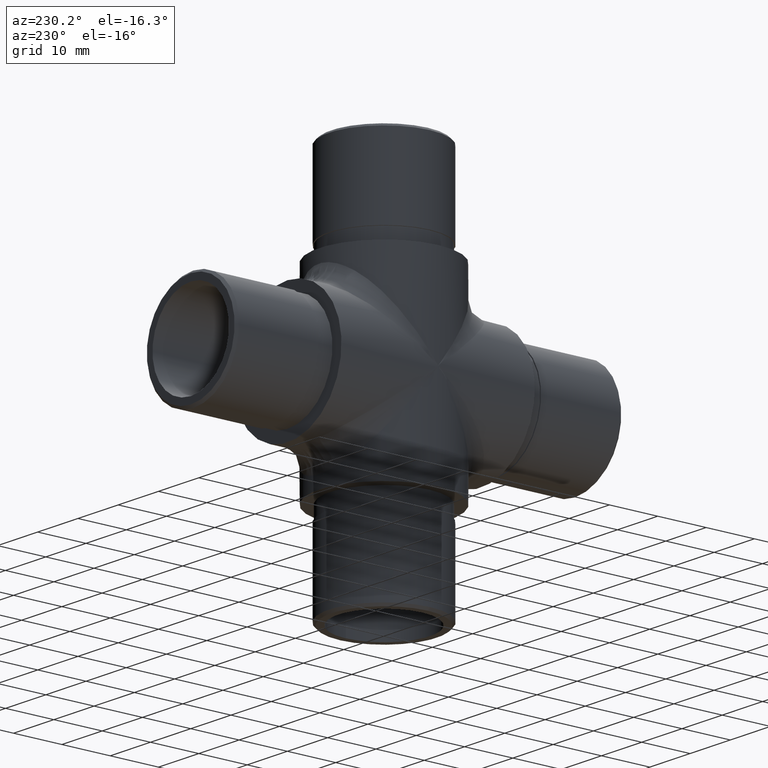
[diagram: clean part render]
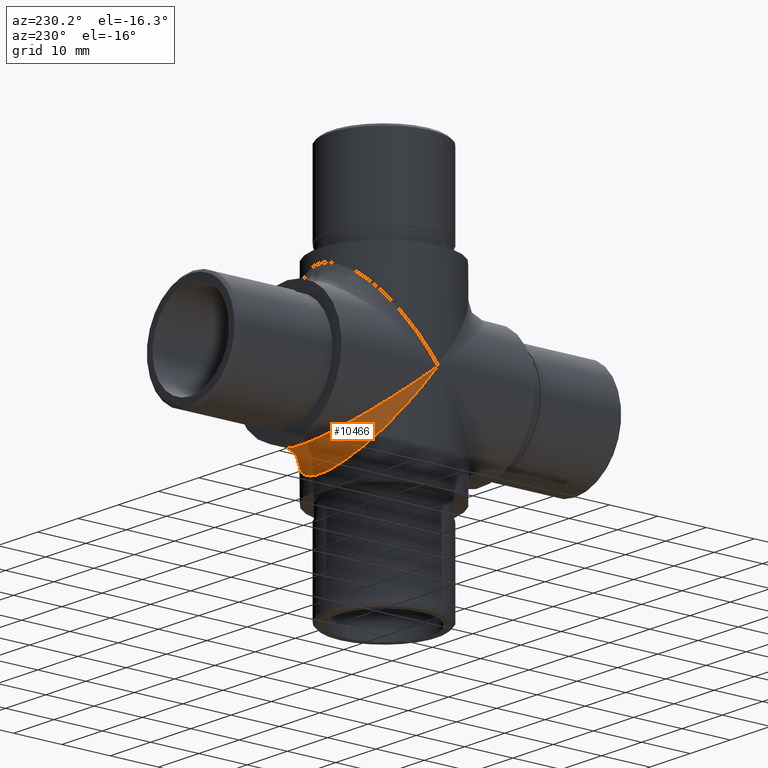
[diagram: same view with one face highlighted and labeled with its STEP entity id]
A machine part, auxiliary view. The second image highlights one B-rep face of the part: STEP entity #10466.
In plain terms, the highlighted face is a freeform B-spline surface patch.
Its self-contained STEP definition (entity closure, byte-faithful):
#89 = CARTESIAN_POINT ( 'NONE',  ( -4.733780939930282400, 12.68303839724893400, -12.68303839724893400 ) ) ;
#133 = CARTESIAN_POINT ( 'NONE',  ( -11.70026303290572400, 6.767469909088331900, -6.767469909088331900 ) ) ;
#179 = CARTESIAN_POINT ( 'NONE',  ( 8.204362700589751300, 10.69419756427675200, -13.87462806666408700 ) ) ;
#224 = CARTESIAN_POINT ( 'NONE',  ( -10.13305261838113600, 8.888119795536983500, -11.53142679792651700 ) ) ;
#394 = CARTESIAN_POINT ( 'NONE',  ( 13.01982392487303400, 4.524480820171791400, -3.487350546207317300 ) ) ;
#429 = CARTESIAN_POINT ( 'NONE',  ( 13.01982392487303400, 3.487350546207317300, -4.524480820171791400 ) ) ;
#1061 = CARTESIAN_POINT ( 'NONE',  ( -8.888119795537040300, 13.14659986548391600, -10.13305261838108600 ) ) ;
#1107 = CARTESIAN_POINT ( 'NONE',  ( -12.76305610663294100, 5.622663238731984600, -4.333800605212510400 ) ) ;
#1155 = CARTESIAN_POINT ( 'NONE',  ( 3.487350545992347500, 16.89189051968587300, -13.01982392491579600 ) ) ;
#1197 = CARTESIAN_POINT ( 'NONE',  ( 7.054827041781281100, 11.57092578937018400, -11.57092578937018400 ) ) ;
#1241 = CARTESIAN_POINT ( 'NONE',  ( -9.277602110785601000, 9.864348740863087900, -9.864348740863087900 ) ) ;
#1282 = CARTESIAN_POINT ( 'NONE',  ( 11.67233500670892900, 6.740476567566878100, -8.745079264241074000 ) ) ;
#1331 = CARTESIAN_POINT ( 'NONE',  ( 10.13305261838048200, 8.888119795537646100, -11.53142679792780000 ) ) ;
#1412 = CARTESIAN_POINT ( 'NONE',  ( 11.16885367848692700, 7.620430911806551900, -7.620430911806551900 ) ) ;
#1456 = CARTESIAN_POINT ( 'NONE',  ( 13.44999999999999800, -6.092634936281267400E-014, 4.696042400744013400E-014 ) ) ;
#1967 = CARTESIAN_POINT ( 'NONE',  ( -13.44999999999999800, 1.142112784787743900, -0.8803104272432752400 ) ) ;
#2048 = CARTESIAN_POINT ( 'NONE',  ( -4.333800605360325500, 12.76305610657172300, -16.55876052488078900 ) ) ;
#2094 = CARTESIAN_POINT ( 'NONE',  ( -4.333800605360325500, 16.55876052488078900, -12.76305610657172300 ) ) ;
#2132 = CARTESIAN_POINT ( 'NONE',  ( 4.333800605359538600, 16.55876052488292800, -12.76305610657204200 ) ) ;
#2173 = CARTESIAN_POINT ( 'NONE',  ( -8.888119795537040300, 10.13305261838108600, -13.14659986548391600 ) ) ;
#2221 = CARTESIAN_POINT ( 'NONE',  ( -7.054827041781781100, 11.57092578937020900, -11.57092578937020900 ) ) ;
#2303 = CARTESIAN_POINT ( 'NONE',  ( 12.76305610663356500, 4.333800605211018300, -5.622663238732032600 ) ) ;
#2348 = CARTESIAN_POINT ( 'NONE',  ( 13.44999999999999800, -4.696042400744013400E-014, 6.092634936281267400E-014 ) ) ;
#2396 = CARTESIAN_POINT ( 'NONE',  ( 13.44999999999859400, 1.011202245689939900, -1.011202245689939900 ) ) ;
#2431 = CARTESIAN_POINT ( 'NONE',  ( 13.44999999999999900, 1.142112784788055700, -0.8803104272435157100 ) ) ;
#2459 = CARTESIAN_POINT ( 'NONE',  ( 13.45000000000000100, 0.0000000000000000000, 0.0000000000000000000 ) ) ;
#2701 = CARTESIAN_POINT ( 'NONE',  ( -13.45000000000000100, 0.0000000000000000000, 0.0000000000000000000 ) ) ;
#3053 = CARTESIAN_POINT ( 'NONE',  ( -13.01982392487316400, 4.524480820171756800, -3.487350546206692000 ) ) ;
#3095 = CARTESIAN_POINT ( 'NONE',  ( 1.760579116241483900, 17.33751576638686500, -13.36330011793109700 ) ) ;
#3142 = CARTESIAN_POINT ( 'NONE',  ( 4.733780939930250400, 12.68303839724686300, -12.68303839724686300 ) ) ;
#3186 = CARTESIAN_POINT ( 'NONE',  ( -6.740476567636771500, 11.67233500666222500, -15.14366140269359400 ) ) ;
#3231 = CARTESIAN_POINT ( 'NONE',  ( -7.826289490383428100, 11.06871699549642000, -11.06871699549642000 ) ) ;
#3327 = CARTESIAN_POINT ( 'NONE',  ( 13.36330011797385000, 1.760579116026561600, -2.284171418191122800 ) ) ;
#3374 = CARTESIAN_POINT ( 'NONE',  ( 11.70026303290028300, 6.767469909088291000, -6.767469909088291000 ) ) ;
#4064 = CARTESIAN_POINT ( 'NONE',  ( 0.6185010550578207100, 13.44999999999999800, -13.44999999999999800 ) ) ;
#4085 =( BOUNDED_SURFACE ( )  B_SPLINE_SURFACE ( 3, 2, ( 
 ( #11943, #9815, #6876 ),
 ( #10875, #4888, #1967 ),
 ( #5880, #8942, #6188 ),
 ( #10205, #5104, #3053 ),
 ( #6229, #10161, #1107 ),
 ( #10113, #133, #8081 ),
 ( #12265, #8036, #12080 ),
 ( #9205, #7190, #11144 ),
 ( #224, #1241, #8206 ),
 ( #2173, #3231, #1061 ),
 ( #6064, #2221, #10073 ),
 ( #3186, #7059, #4242 ),
 ( #9168, #89, #11225 ),
 ( #2048, #4192, #2094 ),
 ( #11102, #9029, #11182 ),
 ( #7008, #11055, #5232 ),
 ( #5189, #7099, #12130 ),
 ( #10024, #4064, #9080 ),
 ( #7146, #5065, #3095 ),
 ( #4105, #6105, #1155 ),
 ( #4148, #8120, #2132 ),
 ( #9126, #3142, #5148 ),
 ( #12219, #12170, #6149 ),
 ( #179, #1197, #8163 ),
 ( #10430, #9297, #5271 ),
 ( #1331, #9334, #8377 ),
 ( #9255, #5397, #8252 ),
 ( #1282, #1412, #10290 ),
 ( #12481, #3374, #6314 ),
 ( #2303, #8293, #12310 ),
 ( #429, #12436, #394 ),
 ( #3327, #6395, #7413 ),
 ( #4327, #2396, #2431 ),
 ( #2348, #9369, #1456 ) ),
 .UNSPECIFIED., .F., .F., .F. ) 
 B_SPLINE_SURFACE_WITH_KNOTS ( ( 4, 2, 2, 2, 2, 2, 2, 2, 2, 2, 2, 2, 2, 2, 2, 2, 4 ),
 ( 3, 3 ),
 ( 4.712388980384689700, 4.908738521234052000, 5.105088062083414300, 5.301437602932775700, 5.497787143782138000, 5.694136684631500200, 5.890486225480861600, 6.086835766330223900, 6.283185307179586200, 6.479534848028948500, 6.675884388878310800, 6.872233929727672200, 7.068583470577034500, 7.264933011426396800, 7.461282552275758200, 7.657632093125120500, 7.853981633974482800 ),
 ( 0.0000000000000000000, 1.000000000000000000 ),
 .UNSPECIFIED. ) 
 GEOMETRIC_REPRESENTATION_ITEM ( )  RATIONAL_B_SPLINE_SURFACE ( (
 ( 1.000000000000000000, 1.000000000000000000, 1.000000000000000000),
 ( 1.000000000000000000, 1.000009746410177400, 1.000000000000000000),
 ( 1.000000000000000000, 0.9967613244614439400, 1.000000000000000000),
 ( 1.000000000000000000, 0.9841171504862968900, 1.000000000000000000),
 ( 1.000000000000000000, 0.9747108043652988900, 1.000000000000000000),
 ( 1.000000000000000000, 0.9506740353970145600, 1.000000000000000000),
 ( 1.000000000000000000, 0.9360421842735772200, 1.000000000000000000),
 ( 1.000000000000000000, 0.9031650994128187500, 1.000000000000000000),
 ( 1.000000000000000000, 0.8849191471367119400, 1.000000000000000000),
 ( 1.000000000000000000, 0.8471316604321670300, 1.000000000000000000),
 ( 1.000000000000000000, 0.8275942695996153500, 1.000000000000000000),
 ( 1.000000000000000000, 0.7902180086437263800, 1.000000000000000000),
 ( 1.000000000000000000, 0.7723968218215461200, 1.000000000000000000),
 ( 1.000000000000000000, 0.7418334178756587100, 1.000000000000000000),
 ( 1.000000000000000000, 0.7291288940217078900, 1.000000000000000000),
 ( 1.000000000000000000, 0.7117460025216090200, 1.000000000000000000),
 ( 1.000000000000000000, 0.7071067811865475700, 1.000000000000000000),
 ( 1.000000000000000000, 0.7071067811865475700, 1.000000000000000000),
 ( 1.000000000000000000, 0.7117460025216734200, 1.000000000000000000),
 ( 1.000000000000000000, 0.7291288940216430500, 1.000000000000000000),
 ( 1.000000000000000000, 0.7418334178756580400, 1.000000000000000000),
 ( 1.000000000000000000, 0.7723968218215454500, 1.000000000000000000),
 ( 1.000000000000000000, 0.7902180086437986500, 1.000000000000000000),
 ( 1.000000000000000000, 0.8275942695995425200, 1.000000000000000000),
 ( 1.000000000000000000, 0.8471316604321654800, 1.000000000000000000),
 ( 1.000000000000000000, 0.8849191471367103800, 1.000000000000000000),
 ( 1.000000000000000000, 0.9031650994128184200, 1.000000000000000000),
 ( 1.000000000000000000, 0.9360421842735768800, 1.000000000000000000),
 ( 1.000000000000000000, 0.9506740353971003800, 1.000000000000000000),
 ( 1.000000000000000000, 0.9747108043652120700, 1.000000000000000000),
 ( 1.000000000000000000, 0.9841171504863854800, 1.000000000000000000),
 ( 1.000000000000000000, 0.9967613244613549000, 1.000000000000000000),
 ( 1.000000000000000000, 1.000009746410244000, 1.000000000000000000),
 ( 1.000000000000000000, 1.000000000000000000, 1.000000000000000000) ) ) 
 REPRESENTATION_ITEM ( '' )  SURFACE ( )  );
#4105 = CARTESIAN_POINT ( 'NONE',  ( 3.487350545992347900, 13.01982392491579600, -16.89189051968587300 ) ) ;
#4148 = CARTESIAN_POINT ( 'NONE',  ( 4.333800605359538600, 12.76305610657204200, -16.55876052488292800 ) ) ;
#4192 = CARTESIAN_POINT ( 'NONE',  ( -3.251151502455415600, 13.12231531940849300, -13.12231531940849300 ) ) ;
#4242 = CARTESIAN_POINT ( 'NONE',  ( -6.740476567636771500, 15.14366140269359400, -11.67233500666222500 ) ) ;
#4284 = FACE_OUTER_BOUND ( 'NONE', #7901, .T. ) ;
#4327 = CARTESIAN_POINT ( 'NONE',  ( 13.44999999999999900, 0.8803104272435157100, -1.142112784788055700 ) ) ;
#4582 = ORIENTED_EDGE ( 'NONE', *, *, #9344, .F. ) ;
#4888 = CARTESIAN_POINT ( 'NONE',  ( -13.44999999999859600, 1.011202245689661700, -1.011202245689661700 ) ) ;
#4970 = CARTESIAN_POINT ( 'NONE',  ( 13.45000000000000100, 0.0000000000000000000, 0.0000000000000000000 ) ) ;
#5065 = CARTESIAN_POINT ( 'NONE',  ( 1.231024211893906800, 13.41883242087678400, -13.41883242087678400 ) ) ;
#5104 = CARTESIAN_POINT ( 'NONE',  ( -12.89222839910951600, 3.997100754241798000, -3.997100754241798000 ) ) ;
#5148 = CARTESIAN_POINT ( 'NONE',  ( 5.960383725261334800, 15.68463515976099600, -12.08930331798157800 ) ) ;
#5189 = CARTESIAN_POINT ( 'NONE',  ( -0.8803004409946737500, 13.44999999999999900, -17.44999999999999600 ) ) ;
#5232 = CARTESIAN_POINT ( 'NONE',  ( -1.760579116241653800, 17.33751576638484000, -13.36330011793106500 ) ) ;
#5271 = CARTESIAN_POINT ( 'NONE',  ( 8.888119795537591000, 13.14659986548277200, -10.13305261838053000 ) ) ;
#5397 = CARTESIAN_POINT ( 'NONE',  ( 9.962209205122006100, 9.168816684698720500, -9.168816684698720500 ) ) ;
#5880 = CARTESIAN_POINT ( 'NONE',  ( -13.36330011797373600, 1.760579116027134200, -2.284171418191088200 ) ) ;
#6064 = CARTESIAN_POINT ( 'NONE',  ( -8.204362700590547100, 10.69419756427621900, -13.87462806666520800 ) ) ;
#6105 = CARTESIAN_POINT ( 'NONE',  ( 2.554661403383208500, 13.25396271894116200, -13.25396271894116200 ) ) ;
#6149 = CARTESIAN_POINT ( 'NONE',  ( 6.740476567637540700, 15.14366140269473800, -11.67233500666171000 ) ) ;
#6188 = CARTESIAN_POINT ( 'NONE',  ( -13.36330011797373600, 2.284171418191088200, -1.760579116027134000 ) ) ;
#6229 = CARTESIAN_POINT ( 'NONE',  ( -12.76305610663294100, 4.333800605212510400, -5.622663238731984600 ) ) ;
#6314 = CARTESIAN_POINT ( 'NONE',  ( 12.08930331792002900, 7.732988550809637700, -5.960383725409923400 ) ) ;
#6395 = CARTESIAN_POINT ( 'NONE',  ( 13.33585166001859300, 2.028616801333707400, -2.028616801333707400 ) ) ;
#6572 = CARTESIAN_POINT ( 'NONE',  ( 13.45000000000000100, 0.0000000000000000000, 0.0000000000000000000 ) ) ;
#6619 = CARTESIAN_POINT ( 'NONE',  ( -13.44999999999999400, 34.89999999999998400, -26.89999999999999900 ) ) ;
#6836 = VERTEX_POINT ( 'NONE', #2459 ) ;
#6876 = CARTESIAN_POINT ( 'NONE',  ( -13.44999999999999800, -3.205512996768196000E-015, 2.470724917279784300E-015 ) ) ;
#7008 = CARTESIAN_POINT ( 'NONE',  ( -1.760579116241653800, 13.36330011793106500, -17.33751576638484000 ) ) ;
#7059 = CARTESIAN_POINT ( 'NONE',  ( -5.506249729539848500, 12.38324776086609100, -12.38324776086609100 ) ) ;
#7099 = CARTESIAN_POINT ( 'NONE',  ( -0.6185010550577871900, 13.44999999999999800, -13.44999999999999800 ) ) ;
#7146 = CARTESIAN_POINT ( 'NONE',  ( 1.760579116241483700, 13.36330011793109700, -17.33751576638686500 ) ) ;
#7190 = CARTESIAN_POINT ( 'NONE',  ( -9.962209205127258800, 9.168816684697395300, -9.168816684697395300 ) ) ;
#7330 = CARTESIAN_POINT ( 'NONE',  ( -13.45000000000000100, 0.0000000000000000000, 0.0000000000000000000 ) ) ;
#7413 = CARTESIAN_POINT ( 'NONE',  ( 13.36330011797385000, 2.284171418191122800, -1.760579116026561600 ) ) ;
#7685 = CARTESIAN_POINT ( 'NONE',  ( 13.44999999999999900, 34.89999999999998400, -26.89999999999999900 ) ) ;
#7901 = EDGE_LOOP ( 'NONE', ( #10996, #4582 ) ) ;
#8036 = CARTESIAN_POINT ( 'NONE',  ( -11.16885367848187400, 7.620430911807802400, -7.620430911807802400 ) ) ;
#8081 = CARTESIAN_POINT ( 'NONE',  ( -12.08930331792067900, 7.732988550809592400, -5.960383725408359400 ) ) ;
#8120 = CARTESIAN_POINT ( 'NONE',  ( 3.251151502455383600, 13.12231531941066700, -13.12231531941066700 ) ) ;
#8163 = CARTESIAN_POINT ( 'NONE',  ( 8.204362700589751300, 13.87462806666408700, -10.69419756427675200 ) ) ;
#8206 = CARTESIAN_POINT ( 'NONE',  ( -10.13305261838113600, 11.53142679792651700, -8.888119795536983500 ) ) ;
#8252 = CARTESIAN_POINT ( 'NONE',  ( 10.69419756422952300, 10.64432186814306600, -8.204362700660439600 ) ) ;
#8293 = CARTESIAN_POINT ( 'NONE',  ( 12.55744004400012200, 4.959083210621027000, -4.959083210621027000 ) ) ;
#8377 = CARTESIAN_POINT ( 'NONE',  ( 10.13305261838048200, 11.53142679792780000, -8.888119795537646100 ) ) ;
#8897 = CARTESIAN_POINT ( 'NONE',  ( -13.45000000000000100, 0.0000000000000000000, 0.0000000000000000000 ) ) ;
#8942 = CARTESIAN_POINT ( 'NONE',  ( -13.33585166001308100, 2.028616801334109700, -2.028616801334109700 ) ) ;
#9029 = CARTESIAN_POINT ( 'NONE',  ( -2.554661403383419800, 13.25396271894116600, -13.25396271894116600 ) ) ;
#9080 = CARTESIAN_POINT ( 'NONE',  ( 0.8803004409947213800, 17.44999999999999600, -13.44999999999999600 ) ) ;
#9126 = CARTESIAN_POINT ( 'NONE',  ( 5.960383725261334800, 12.08930331798157800, -15.68463515976099600 ) ) ;
#9168 = CARTESIAN_POINT ( 'NONE',  ( -5.960383725260620700, 12.08930331798187500, -15.68463515976309700 ) ) ;
#9205 = CARTESIAN_POINT ( 'NONE',  ( -10.69419756423062200, 8.204362700658789400, -10.64432186814175900 ) ) ;
#9255 = CARTESIAN_POINT ( 'NONE',  ( 10.69419756422952300, 8.204362700660439600, -10.64432186814306600 ) ) ;
#9297 = CARTESIAN_POINT ( 'NONE',  ( 7.826289490383367700, 11.06871699549523500, -11.06871699549647300 ) ) ;
#9334 = CARTESIAN_POINT ( 'NONE',  ( 9.277602110785540600, 9.864348740864331300, -9.864348740863143000 ) ) ;
#9344 = EDGE_CURVE ( 'NONE', #6836, #12795, #9903, .T. ) ;
#9369 = CARTESIAN_POINT ( 'NONE',  ( 13.44999999999999800, -5.394338668512640100E-014, 5.394338668512640100E-014 ) ) ;
#9815 = CARTESIAN_POINT ( 'NONE',  ( -13.44999999999999800, -2.838118957023990100E-015, 2.838118957023990100E-015 ) ) ;
#9895 = CARTESIAN_POINT ( 'NONE',  ( 13.44999999999999400, 26.89999999999999900, -34.89999999999998400 ) ) ;
#9903 =( BOUNDED_CURVE ( )  B_SPLINE_CURVE ( 3, ( #6572, #7685, #6619, #2701 ),
 .UNSPECIFIED., .F., .F. ) 
 B_SPLINE_CURVE_WITH_KNOTS ( ( 4, 4 ),
 ( 4.712388980384689700, 7.853981633974482800 ),
 .UNSPECIFIED. ) 
 CURVE ( )  GEOMETRIC_REPRESENTATION_ITEM ( )  RATIONAL_B_SPLINE_CURVE ( ( 1.000000000000000000, 0.3333333333333333700, 0.3333333333333333700, 1.000000000000000000 ) ) 
 REPRESENTATION_ITEM ( '' )  );
#10024 = CARTESIAN_POINT ( 'NONE',  ( 0.8803004409947213800, 13.44999999999999600, -17.44999999999999600 ) ) ;
#10073 = CARTESIAN_POINT ( 'NONE',  ( -8.204362700590547100, 13.87462806666520800, -10.69419756427621900 ) ) ;
#10113 = CARTESIAN_POINT ( 'NONE',  ( -12.08930331792067900, 5.960383725408359400, -7.732988550809592400 ) ) ;
#10161 = CARTESIAN_POINT ( 'NONE',  ( -12.55744004399477400, 4.959083210621065200, -4.959083210621065200 ) ) ;
#10205 = CARTESIAN_POINT ( 'NONE',  ( -13.01982392487316400, 3.487350546206692000, -4.524480820171756800 ) ) ;
#10290 = CARTESIAN_POINT ( 'NONE',  ( 11.67233500670892900, 8.745079264241074000, -6.740476567566878100 ) ) ;
#10430 = CARTESIAN_POINT ( 'NONE',  ( 8.888119795537591000, 10.13305261838053000, -13.14659986548277200 ) ) ;
#10466 = ADVANCED_FACE ( 'NONE', ( #4284 ), #4085, .F. ) ;
#10723 =( BOUNDED_CURVE ( )  B_SPLINE_CURVE ( 3, ( #8897, #11942, #9895, #4970 ),
 .UNSPECIFIED., .F., .F. ) 
 B_SPLINE_CURVE_WITH_KNOTS ( ( 4, 4 ),
 ( 4.712388980384689700, 7.853981633974482800 ),
 .UNSPECIFIED. ) 
 CURVE ( )  GEOMETRIC_REPRESENTATION_ITEM ( )  RATIONAL_B_SPLINE_CURVE ( ( 1.000000000000000000, 0.3333333333333333700, 0.3333333333333333700, 1.000000000000000000 ) ) 
 REPRESENTATION_ITEM ( '' )  );
#10875 = CARTESIAN_POINT ( 'NONE',  ( -13.44999999999999800, 0.8803104272432752400, -1.142112784787743900 ) ) ;
#10996 = ORIENTED_EDGE ( 'NONE', *, *, #11841, .F. ) ;
#11055 = CARTESIAN_POINT ( 'NONE',  ( -1.231024211893610600, 13.41883242087678800, -13.41883242087678800 ) ) ;
#11102 = CARTESIAN_POINT ( 'NONE',  ( -3.487350545992230300, 13.01982392491581900, -16.89189051968788700 ) ) ;
#11144 = CARTESIAN_POINT ( 'NONE',  ( -10.69419756423062200, 10.64432186814175900, -8.204362700658789400 ) ) ;
#11182 = CARTESIAN_POINT ( 'NONE',  ( -3.487350545992230300, 16.89189051968788700, -13.01982392491581900 ) ) ;
#11225 = CARTESIAN_POINT ( 'NONE',  ( -5.960383725260620700, 15.68463515976309700, -12.08930331798187500 ) ) ;
#11841 = EDGE_CURVE ( 'NONE', #12795, #6836, #10723, .T. ) ;
#11942 = CARTESIAN_POINT ( 'NONE',  ( -13.44999999999999900, 26.89999999999999900, -34.89999999999998400 ) ) ;
#11943 = CARTESIAN_POINT ( 'NONE',  ( -13.44999999999999800, -2.470724917279784300E-015, 3.205512996768196000E-015 ) ) ;
#12080 = CARTESIAN_POINT ( 'NONE',  ( -11.67233500670784200, 8.745079264242345800, -6.740476567568499000 ) ) ;
#12130 = CARTESIAN_POINT ( 'NONE',  ( -0.8803004409946737500, 17.44999999999999600, -13.44999999999999900 ) ) ;
#12170 = CARTESIAN_POINT ( 'NONE',  ( 5.506249729540488000, 12.38324776086605900, -12.38324776086605900 ) ) ;
#12219 = CARTESIAN_POINT ( 'NONE',  ( 6.740476567637540700, 11.67233500666171000, -15.14366140269473800 ) ) ;
#12265 = CARTESIAN_POINT ( 'NONE',  ( -11.67233500670784200, 6.740476567568499000, -8.745079264242345800 ) ) ;
#12310 = CARTESIAN_POINT ( 'NONE',  ( 12.76305610663356500, 5.622663238732032600, -4.333800605211018300 ) ) ;
#12436 = CARTESIAN_POINT ( 'NONE',  ( 12.89222839910393100, 3.997100754242087100, -3.997100754242087100 ) ) ;
#12481 = CARTESIAN_POINT ( 'NONE',  ( 12.08930331792002900, 5.960383725409923400, -7.732988550809637700 ) ) ;
#12795 = VERTEX_POINT ( 'NONE', #7330 ) ;